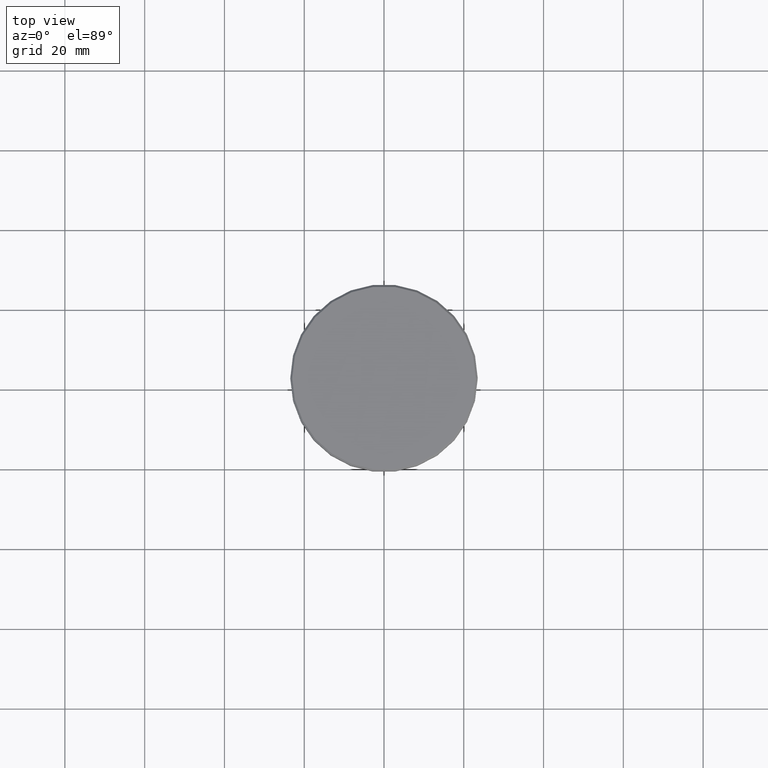
[diagram: clean part render]
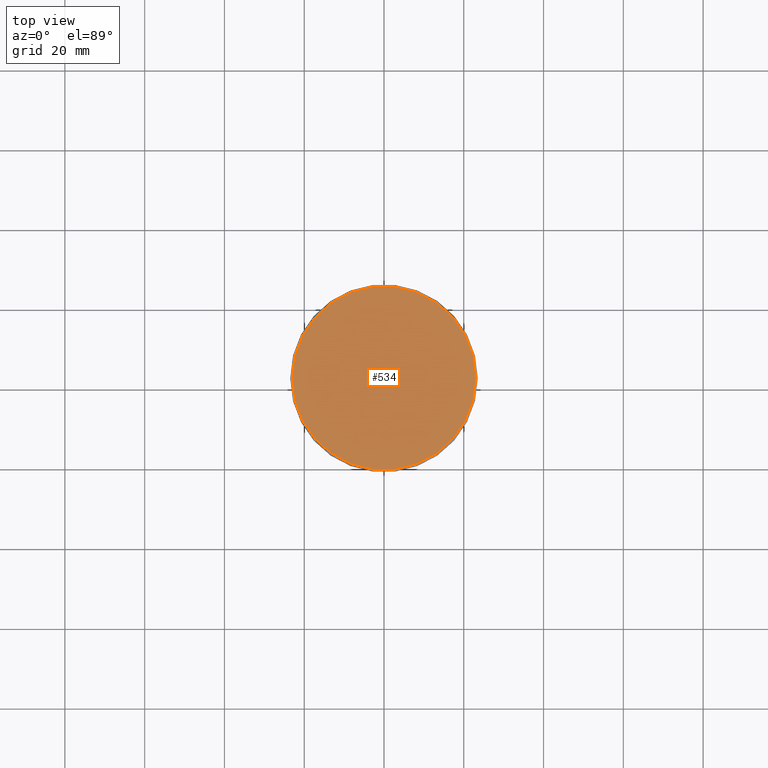
[diagram: same view with one face highlighted and labeled with its STEP entity id]
A machine part, top view. The second image highlights one B-rep face of the part: STEP entity #534.
In plain terms, the highlighted planar face has unit normal (0, -0, 1).
Its self-contained STEP definition (entity closure, byte-faithful):
#27 = CARTESIAN_POINT ( 'NONE',  ( -22.99999999999999645, 0.000000000000000000, 0.000000000000000000 ) ) ;
#119 = DIRECTION ( 'NONE',  ( 1.000000000000000000, 0.000000000000000000, 0.000000000000000000 ) ) ;
#163 = DIRECTION ( 'NONE',  ( 1.000000000000000000, 0.000000000000000000, 0.000000000000000000 ) ) ;
#169 = DIRECTION ( 'NONE',  ( 1.000000000000000000, 0.000000000000000000, 0.000000000000000000 ) ) ;
#173 = EDGE_CURVE ( 'NONE', #339, #903, #744, .T. ) ;
#185 = AXIS2_PLACEMENT_3D ( 'NONE', #433, #256, #163 ) ;
#256 = DIRECTION ( 'NONE',  ( -0.000000000000000000, -0.000000000000000000, 1.000000000000000000 ) ) ;
#265 = FACE_OUTER_BOUND ( 'NONE', #509, .T. ) ;
#319 = EDGE_CURVE ( 'NONE', #903, #339, #1028, .T. ) ;
#339 = VERTEX_POINT ( 'NONE', #487 ) ;
#433 = CARTESIAN_POINT ( 'NONE',  ( 0.000000000000000000, 0.000000000000000000, 0.000000000000000000 ) ) ;
#478 = AXIS2_PLACEMENT_3D ( 'NONE', #988, #1155, #169 ) ;
#487 = CARTESIAN_POINT ( 'NONE',  ( 22.99999999999999645, 2.847303808017596139E-15, 0.000000000000000000 ) ) ;
#509 = EDGE_LOOP ( 'NONE', ( #1097, #999 ) ) ;
#515 = AXIS2_PLACEMENT_3D ( 'NONE', #774, #1039, #119 ) ;
#534 = ADVANCED_FACE ( 'NONE', ( #265 ), #974, .T. ) ;
#744 = CIRCLE ( 'NONE', #185, 22.99999999999999645 ) ;
#774 = CARTESIAN_POINT ( 'NONE',  ( 0.000000000000000000, 0.000000000000000000, 0.000000000000000000 ) ) ;
#903 = VERTEX_POINT ( 'NONE', #27 ) ;
#974 = PLANE ( 'NONE',  #478 ) ;
#988 = CARTESIAN_POINT ( 'NONE',  ( 0.000000000000000000, 0.000000000000000000, 0.000000000000000000 ) ) ;
#999 = ORIENTED_EDGE ( 'NONE', *, *, #173, .T. ) ;
#1028 = CIRCLE ( 'NONE', #515, 22.99999999999999645 ) ;
#1039 = DIRECTION ( 'NONE',  ( -0.000000000000000000, -0.000000000000000000, 1.000000000000000000 ) ) ;
#1097 = ORIENTED_EDGE ( 'NONE', *, *, #319, .T. ) ;
#1155 = DIRECTION ( 'NONE',  ( 0.000000000000000000, -0.000000000000000000, 1.000000000000000000 ) ) ;